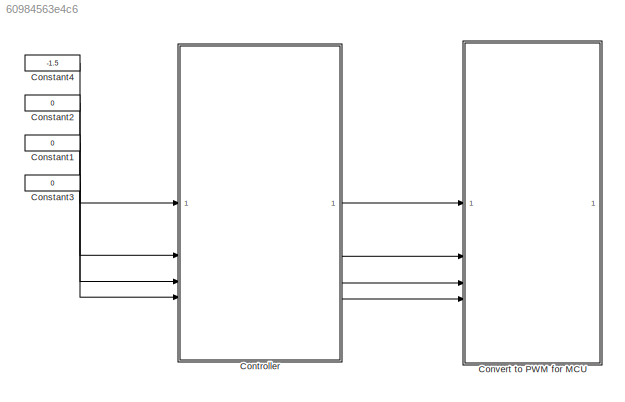
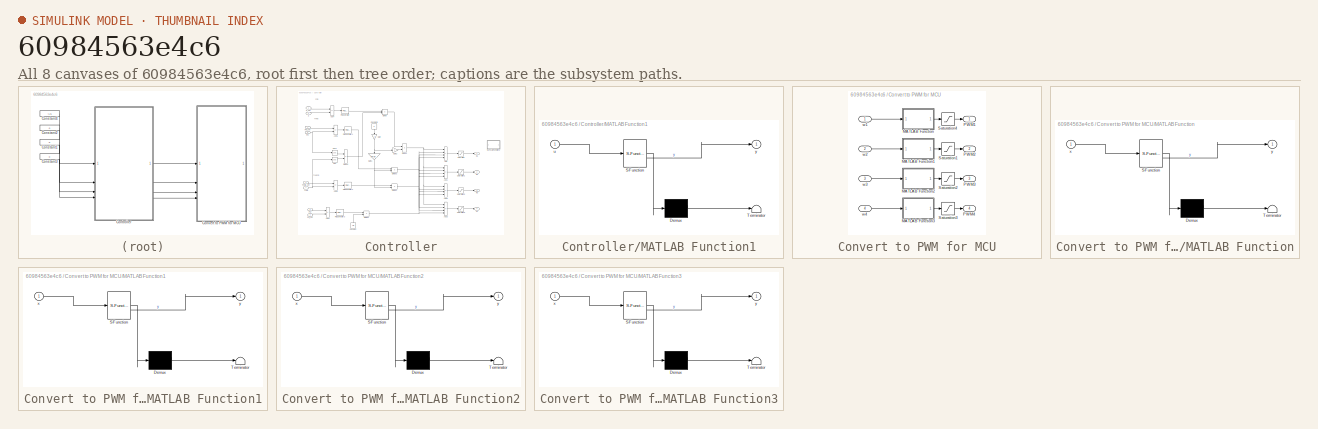
[diagram: thumbnail index - all 8 canvases of the model, root first then tree order]
MODEL slx_60984563e4c6
KIND model
CONFIG AbsTol = auto
CONFIG EnableMultiTasking = off
CONFIG FixedStep = auto
CONFIG InitFcn = m = 0.0489; % Mass of the drone (kg)\nd = 0.00116; % Torque constant of one motor (N*m / s^2)\nb = 4*1e-5; % Thrust constant of one motor (N / s^2)\nIxx = 48932*1e-9; % Drone inertia around the xx axis (Kg * m^2)\nIyy = 49929*1e-9; % Drone inertia around the yy axis (Kg * m^2)\nIzz = 99299*1e-9; % Drone inertia around the zz axis (Kg * m^2)\nl = 0.116 / 2; % Lenght from the motor to the mid point (m)\nJr...<+405ch>
CONFIG MaxStep = auto
CONFIG MinStep = auto
CONFIG RelTol = 1e-1
CONFIG SampleTimeConstraint = Unconstrained
CONFIG SolverName = VariableStepAuto
CONFIG StartTime = 0.0
CONFIG StopTime = 100
BLOCK [Constant] Constant1
  Value = 0
BLOCK [Constant] Constant2
  Value = 0
BLOCK [Constant] Constant3
  Value = 0
BLOCK [Constant] Constant4
  Value = -1.5
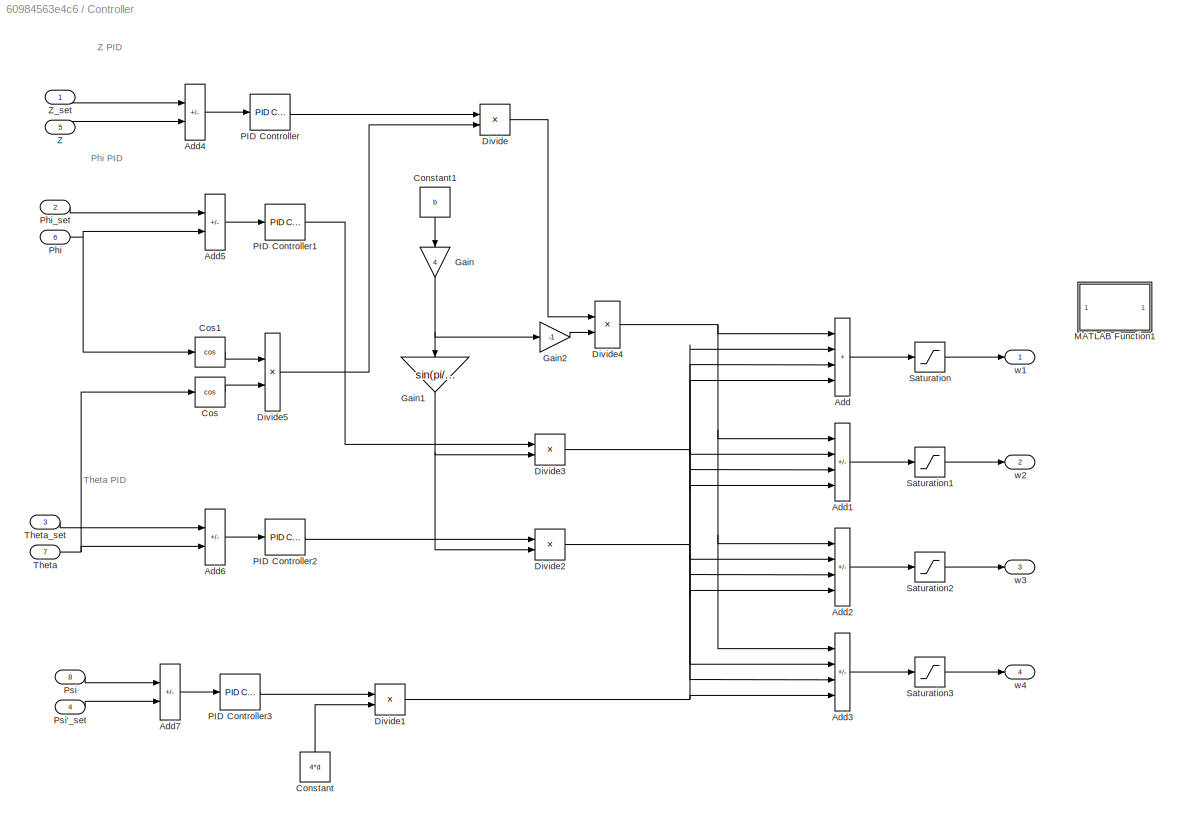
BLOCK [SubSystem] Controller
BLOCK [Sum] Controller/Add
  IconShape = rectangular
  Inputs = ++++
BLOCK [Sum] Controller/Add1
  IconShape = rectangular
  Inputs = +-+-
BLOCK [Sum] Controller/Add2
  IconShape = rectangular
  Inputs = +--+
BLOCK [Sum] Controller/Add3
  IconShape = rectangular
  Inputs = ++--
BLOCK [Sum] Controller/Add4
  IconShape = rectangular
  Inputs = +-
BLOCK [Sum] Controller/Add5
  IconShape = rectangular
  Inputs = +-
BLOCK [Sum] Controller/Add6
  IconShape = rectangular
  Inputs = +-
BLOCK [Sum] Controller/Add7
  IconShape = rectangular
  Inputs = +-
BLOCK [Constant] Controller/Constant
  NameLocation = right
  Value = 4*d
BLOCK [Constant] Controller/Constant1
  NameLocation = left
  Value = b
BLOCK [Trigonometry] Controller/Cos
  Operator = cos
BLOCK [Trigonometry] Controller/Cos1
  Operator = cos
BLOCK [Product] Controller/Divide
  Inputs = */
BLOCK [Product] Controller/Divide1
  Inputs = */
BLOCK [Product] Controller/Divide2
  Inputs = */
BLOCK [Product] Controller/Divide3
  Inputs = */
BLOCK [Product] Controller/Divide4
  Inputs = */
BLOCK [Product] Controller/Divide5
  Inputs = **
BLOCK [Gain] Controller/Gain
  Gain = 4
  NameLocation = left
BLOCK [Gain] Controller/Gain1
  Gain = sin(pi/4)*l
  NameLocation = left
BLOCK [Gain] Controller/Gain2
  Gain = -1
BLOCK [SubSystem] Controller/MATLAB Function1
  ErrorFcn = Stateflow.Translate.translate
  LibrarySourceBlock = simulink/User-Defined\nFunctions/MATLAB Function
  PermitHierarchicalResolution = ExplicitOnly
  SFBlockType = MATLAB Function
  TreatAsAtomicUnit = on
BLOCK [Demux] Controller/MATLAB Function1/ Demux 
  Outputs = 1
BLOCK [S-Function] Controller/MATLAB Function1/ SFunction 
  EnableBusSupport = on
  FunctionName = sf_sfun
  PortCounts = [1 2]
  SFcnIsStateOwnerBlock = off
  SFunctionDeploymentMode = off
  Tag = Stateflow S-Function 6
BLOCK [Terminator] Controller/MATLAB Function1/ Terminator 
BLOCK [Inport] Controller/MATLAB Function1/u
BLOCK [Outport] Controller/MATLAB Function1/y
BLOCK [Reference] Controller/PID Controller  REF=slpidlib/PID Controller
  LibrarySourceBlock = simulink/Continuous/PID Controller
  SourceBlock = slpidlib/PID Controller
  SourceType = PID 1dof
BLOCK [Reference] Controller/PID Controller1  REF=slpidlib/PID Controller
  LibrarySourceBlock = simulink/Continuous/PID Controller
  SourceBlock = slpidlib/PID Controller
  SourceType = PID 1dof
BLOCK [Reference] Controller/PID Controller2  REF=slpidlib/PID Controller
  LibrarySourceBlock = simulink/Continuous/PID Controller
  SourceBlock = slpidlib/PID Controller
  SourceType = PID 1dof
BLOCK [Reference] Controller/PID Controller3  REF=slpidlib/PID Controller
  LibrarySourceBlock = simulink/Continuous/PID Controller
  SourceBlock = slpidlib/PID Controller
  SourceType = PID 1dof
BLOCK [Inport] Controller/Phi
  Port = 6
BLOCK [Inport] Controller/Phi_set
  Port = 2
BLOCK [Inport] Controller/Psi
  Port = 8
BLOCK [Inport] Controller/Psi'_set
  Port = 4
BLOCK [Saturate] Controller/Saturation
  LowerLimit = 0
  UpperLimit = 3500
BLOCK [Saturate] Controller/Saturation1
  LowerLimit = 0
  UpperLimit = 3500
BLOCK [Saturate] Controller/Saturation2
  LowerLimit = 0
  UpperLimit = 3500
BLOCK [Saturate] Controller/Saturation3
  LowerLimit = 0
  UpperLimit = 3500
BLOCK [Inport] Controller/Theta
  Port = 7
BLOCK [Inport] Controller/Theta_set
  Port = 3
BLOCK [Inport] Controller/Z
  Port = 5
BLOCK [Inport] Controller/Z_set
BLOCK [Outport] Controller/w1
BLOCK [Outport] Controller/w2
  Port = 2
BLOCK [Outport] Controller/w3
  Port = 3
BLOCK [Outport] Controller/w4
  Port = 4
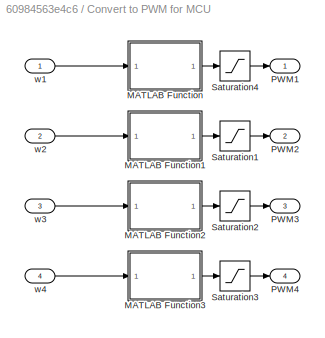
BLOCK [SubSystem] Convert to PWM for MCU
BLOCK [SubSystem] Convert to PWM for MCU/MATLAB Function
  ErrorFcn = Stateflow.Translate.translate
  LibrarySourceBlock = simulink/User-Defined\nFunctions/MATLAB Function
  PermitHierarchicalResolution = ExplicitOnly
  SFBlockType = MATLAB Function
  TreatAsAtomicUnit = on
BLOCK [Demux] Convert to PWM for MCU/MATLAB Function/ Demux 
  Outputs = 1
BLOCK [S-Function] Convert to PWM for MCU/MATLAB Function/ SFunction 
  EnableBusSupport = on
  FunctionName = sf_sfun
  PortCounts = [1 2]
  SFcnIsStateOwnerBlock = off
  SFunctionDeploymentMode = off
  Tag = Stateflow S-Function 7
BLOCK [Terminator] Convert to PWM for MCU/MATLAB Function/ Terminator 
BLOCK [Inport] Convert to PWM for MCU/MATLAB Function/x
BLOCK [Outport] Convert to PWM for MCU/MATLAB Function/y
BLOCK [SubSystem] Convert to PWM for MCU/MATLAB Function1
  ErrorFcn = Stateflow.Translate.translate
  LibrarySourceBlock = simulink/User-Defined\nFunctions/MATLAB Function
  PermitHierarchicalResolution = ExplicitOnly
  SFBlockType = MATLAB Function
  TreatAsAtomicUnit = on
BLOCK [Demux] Convert to PWM for MCU/MATLAB Function1/ Demux 
  Outputs = 1
BLOCK [S-Function] Convert to PWM for MCU/MATLAB Function1/ SFunction 
  EnableBusSupport = on
  FunctionName = sf_sfun
  PortCounts = [1 2]
  SFcnIsStateOwnerBlock = off
  SFunctionDeploymentMode = off
  Tag = Stateflow S-Function 1
BLOCK [Terminator] Convert to PWM for MCU/MATLAB Function1/ Terminator 
BLOCK [Inport] Convert to PWM for MCU/MATLAB Function1/x
BLOCK [Outport] Convert to PWM for MCU/MATLAB Function1/y
BLOCK [SubSystem] Convert to PWM for MCU/MATLAB Function2
  ErrorFcn = Stateflow.Translate.translate
  LibrarySourceBlock = simulink/User-Defined\nFunctions/MATLAB Function
  PermitHierarchicalResolution = ExplicitOnly
  SFBlockType = MATLAB Function
  TreatAsAtomicUnit = on
BLOCK [Demux] Convert to PWM for MCU/MATLAB Function2/ Demux 
  Outputs = 1
BLOCK [S-Function] Convert to PWM for MCU/MATLAB Function2/ SFunction 
  EnableBusSupport = on
  FunctionName = sf_sfun
  PortCounts = [1 2]
  SFcnIsStateOwnerBlock = off
  SFunctionDeploymentMode = off
  Tag = Stateflow S-Function 2
BLOCK [Terminator] Convert to PWM for MCU/MATLAB Function2/ Terminator 
BLOCK [Inport] Convert to PWM for MCU/MATLAB Function2/x
BLOCK [Outport] Convert to PWM for MCU/MATLAB Function2/y
BLOCK [SubSystem] Convert to PWM for MCU/MATLAB Function3
  ErrorFcn = Stateflow.Translate.translate
  LibrarySourceBlock = simulink/User-Defined\nFunctions/MATLAB Function
  PermitHierarchicalResolution = ExplicitOnly
  SFBlockType = MATLAB Function
  TreatAsAtomicUnit = on
BLOCK [Demux] Convert to PWM for MCU/MATLAB Function3/ Demux 
  Outputs = 1
BLOCK [S-Function] Convert to PWM for MCU/MATLAB Function3/ SFunction 
  EnableBusSupport = on
  FunctionName = sf_sfun
  PortCounts = [1 2]
  SFcnIsStateOwnerBlock = off
  SFunctionDeploymentMode = off
  Tag = Stateflow S-Function 3
BLOCK [Terminator] Convert to PWM for MCU/MATLAB Function3/ Terminator 
BLOCK [Inport] Convert to PWM for MCU/MATLAB Function3/x
BLOCK [Outport] Convert to PWM for MCU/MATLAB Function3/y
BLOCK [Outport] Convert to PWM for MCU/PWM1
BLOCK [Outport] Convert to PWM for MCU/PWM2
  Port = 2
BLOCK [Outport] Convert to PWM for MCU/PWM3
  Port = 3
BLOCK [Outport] Convert to PWM for MCU/PWM4
  Port = 4
BLOCK [Saturate] Convert to PWM for MCU/Saturation1
  LowerLimit = 0
  UpperLimit = 255
BLOCK [Saturate] Convert to PWM for MCU/Saturation2
  LowerLimit = 0
  UpperLimit = 255
BLOCK [Saturate] Convert to PWM for MCU/Saturation3
  LowerLimit = 0
  UpperLimit = 255
BLOCK [Saturate] Convert to PWM for MCU/Saturation4
  LowerLimit = 0
  UpperLimit = 255
BLOCK [Inport] Convert to PWM for MCU/w1
BLOCK [Inport] Convert to PWM for MCU/w2
  Port = 2
BLOCK [Inport] Convert to PWM for MCU/w3
  Port = 3
BLOCK [Inport] Convert to PWM for MCU/w4
  Port = 4
ANNOTATION Controller: Phi PID
ANNOTATION Controller: Theta PID
ANNOTATION Controller: Z PID
LINE Constant1:1 -> Controller:3
LINE Constant2:1 -> Controller:2
LINE Constant3:1 -> Controller:4
LINE Constant4:1 -> Controller:1
LINE Controller/Add1:1 -> Controller/Saturation1:1
LINE Controller/Add2:1 -> Controller/Saturation2:1
LINE Controller/Add3:1 -> Controller/Saturation3:1
LINE Controller/Add4:1 -> Controller/PID Controller:1
LINE Controller/Add5:1 -> Controller/PID Controller1:1
LINE Controller/Add6:1 -> Controller/PID Controller2:1
LINE Controller/Add7:1 -> Controller/PID Controller3:1
LINE Controller/Add:1 -> Controller/Saturation:1
LINE Controller/Constant1:1 -> Controller/Gain:1
LINE Controller/Constant:1 -> Controller/Divide1:2
LINE Controller/Cos1:1 -> Controller/Divide5:1
LINE Controller/Cos:1 -> Controller/Divide5:2
NET Controller/Divide1:1 -> Controller/Add1:4, Controller/Add2:4, Controller/Add3:4, Controller/Add:4
NET Controller/Divide2:1 -> Controller/Add1:3, Controller/Add2:3, Controller/Add3:3, Controller/Add:3
NET Controller/Divide3:1 -> Controller/Add1:2, Controller/Add2:2, Controller/Add3:2, Controller/Add:2
NET Controller/Divide4:1 -> Controller/Add1:1, Controller/Add2:1, Controller/Add3:1, Controller/Add:1
LINE Controller/Divide5:1 -> Controller/Divide:2
LINE Controller/Divide:1 -> Controller/Divide4:1
NET Controller/Gain1:1 -> Controller/Divide2:2, Controller/Divide3:2
LINE Controller/Gain2:1 -> Controller/Divide4:2
NET Controller/Gain:1 -> Controller/Gain1:1, Controller/Gain2:1
LINE Controller/PID Controller1:1 -> Controller/Divide3:1
LINE Controller/PID Controller2:1 -> Controller/Divide2:1
LINE Controller/PID Controller3:1 -> Controller/Divide1:1
LINE Controller/PID Controller:1 -> Controller/Divide:1
NET Controller/Phi:1 -> Controller/Add5:2, Controller/Cos1:1
LINE Controller/Phi_set:1 -> Controller/Add5:1
LINE Controller/Psi'_set:1 -> Controller/Add7:2
LINE Controller/Psi:1 -> Controller/Add7:1
LINE Controller/Saturation1:1 -> Controller/w2:1
LINE Controller/Saturation2:1 -> Controller/w3:1
LINE Controller/Saturation3:1 -> Controller/w4:1
LINE Controller/Saturation:1 -> Controller/w1:1
NET Controller/Theta:1 -> Controller/Add6:2, Controller/Cos:1
LINE Controller/Theta_set:1 -> Controller/Add6:1
LINE Controller/Z:1 -> Controller/Add4:2
LINE Controller/Z_set:1 -> Controller/Add4:1
LINE Controller:1 -> Convert to PWM for MCU:1
LINE Controller:2 -> Convert to PWM for MCU:2
LINE Controller:3 -> Convert to PWM for MCU:3
LINE Controller:4 -> Convert to PWM for MCU:4
LINE Convert to PWM for MCU/MATLAB Function1:1 -> Convert to PWM for MCU/Saturation1:1
LINE Convert to PWM for MCU/MATLAB Function2:1 -> Convert to PWM for MCU/Saturation2:1
LINE Convert to PWM for MCU/MATLAB Function3:1 -> Convert to PWM for MCU/Saturation3:1
LINE Convert to PWM for MCU/MATLAB Function:1 -> Convert to PWM for MCU/Saturation4:1
LINE Convert to PWM for MCU/Saturation1:1 -> Convert to PWM for MCU/PWM2:1
LINE Convert to PWM for MCU/Saturation2:1 -> Convert to PWM for MCU/PWM3:1
LINE Convert to PWM for MCU/Saturation3:1 -> Convert to PWM for MCU/PWM4:1
LINE Convert to PWM for MCU/Saturation4:1 -> Convert to PWM for MCU/PWM1:1
LINE Convert to PWM for MCU/w1:1 -> Convert to PWM for MCU/MATLAB Function:1
LINE Convert to PWM for MCU/w2:1 -> Convert to PWM for MCU/MATLAB Function1:1
LINE Convert to PWM for MCU/w3:1 -> Convert to PWM for MCU/MATLAB Function2:1
LINE Convert to PWM for MCU/w4:1 -> Convert to PWM for MCU/MATLAB Function3:1
note: NET lines group one-source signal fan-out (src -> all destinations, sorted); 1:1 wires keep LINE
CHART Convert to PWM for MCU/MATLAB Function2 states=1 transitions=1
  STATE_LABEL 'eML_blk_kernel()'
  STATE_LABEL 'SCRIPT:\nfunction y = fcn(x)\n\ny = 0.0795*x - 21.961;\n'
CHART Convert to PWM for MCU/MATLAB Function3 states=1 transitions=1
  STATE_LABEL 'eML_blk_kernel()'
  STATE_LABEL 'SCRIPT:\nfunction y = fcn(x)\n\ny = 0.0795*x - 21.961;\n'
CHART Controller/MATLAB Function1 states=1 transitions=1
  STATE_LABEL 'eML_blk_kernel()'
  STATE_LABEL 'SCRIPT:\nfunction y = fcn(u)\n    if 0.0795*u - 21.961 > 255\n        q = 255;\n    elseif 0.0795*u - 21.961 < 0\n        q = 0;\n    else\n        q = (0.0795*u - 21.961);\n    end\ny = q;\n'
CHART Convert to PWM for MCU/MATLAB Function states=1 transitions=1
  STATE_LABEL 'eML_blk_kernel()'
  STATE_LABEL 'SCRIPT:\nfunction y = fcn(x)\n\ny = 0.0795*x - 21.961;\n'
CHART Convert to PWM for MCU/MATLAB Function1 states=1 transitions=1
  STATE_LABEL 'eML_blk_kernel()'
  STATE_LABEL 'SCRIPT:\nfunction y = fcn(x)\n\ny = 0.0795*x - 21.961;\n'
CHART  states=0 transitions=0
CHART  states=0 transitions=0
CHART  states=0 transitions=0
CHART  states=0 transitions=0
CHART  states=0 transitions=0
